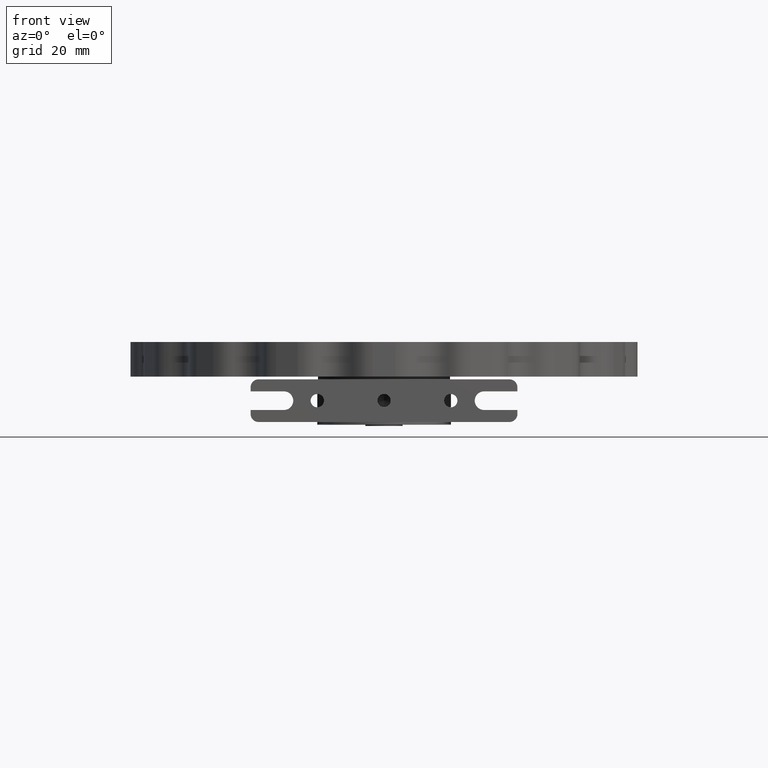
[diagram: clean part render]
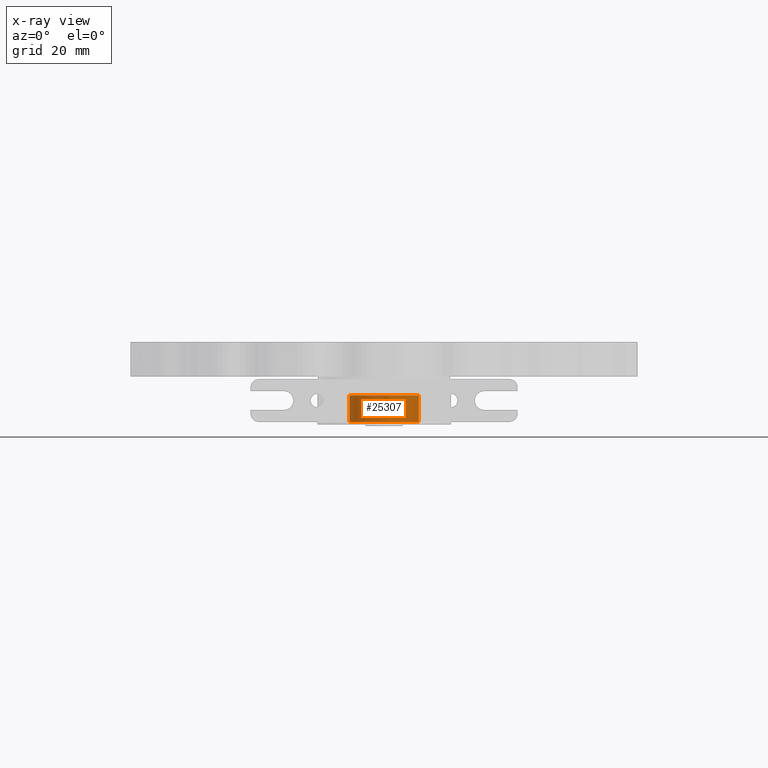
[diagram: x-ray — body ghosted, one internal face saturated and labeled with its STEP entity id]
A machine part, front view, then the same camera in x-ray: the body is ghosted and one INTERNAL B-rep face — a face not visible from any outside direction — is saturated and labeled: STEP entity #25307.
In plain terms, the highlighted cylindrical surface (edge-blend (fillet) strip) has radius 13 mm, axis along (-0, -0, -1).
Its self-contained STEP definition (entity closure, byte-faithful):
#2287 = EDGE_CURVE ( 'NONE', #43781, #21753, #27997, .T. ) ;
#2918 = AXIS2_PLACEMENT_3D ( 'NONE', #4571, #28815, #44686 ) ;
#3811 = VECTOR ( 'NONE', #17351, 1000.000000000000000 ) ;
#4571 = CARTESIAN_POINT ( 'NONE',  ( 0.0000000000000000000, 0.0000000000000000000, -16.00000000000000000 ) ) ;
#6626 = ORIENTED_EDGE ( 'NONE', *, *, #37275, .F. ) ;
#6641 = ORIENTED_EDGE ( 'NONE', *, *, #2287, .T. ) ;
#6770 = ORIENTED_EDGE ( 'NONE', *, *, #13925, .F. ) ;
#7821 = VERTEX_POINT ( 'NONE', #26048 ) ;
#10129 = CARTESIAN_POINT ( 'NONE',  ( -13.00000000000000200, 0.0000000000000000000, -6.000000000000000000 ) ) ;
#10174 = DIRECTION ( 'NONE',  ( -0.0000000000000000000, -0.0000000000000000000, -1.000000000000000000 ) ) ;
#10600 = DIRECTION ( 'NONE',  ( -1.000000000000000000, 0.0000000000000000000, 0.0000000000000000000 ) ) ;
#13609 = AXIS2_PLACEMENT_3D ( 'NONE', #26841, #24023, #10600 ) ;
#13925 = EDGE_CURVE ( 'NONE', #7821, #43995, #39193, .T. ) ;
#14615 = LINE ( 'NONE', #17704, #3811 ) ;
#15511 = CARTESIAN_POINT ( 'NONE',  ( 13.00000000000000200, 1.592040838891559300E-015, -16.00000000000000000 ) ) ;
#17351 = DIRECTION ( 'NONE',  ( -0.0000000000000000000, -0.0000000000000000000, -1.000000000000000000 ) ) ;
#17704 = CARTESIAN_POINT ( 'NONE',  ( 13.00000000000000200, 1.592040838891559300E-015, -6.000000000000000000 ) ) ;
#19332 = CARTESIAN_POINT ( 'NONE',  ( 0.0000000000000000000, 0.0000000000000000000, -6.000000000000000000 ) ) ;
#20624 = LINE ( 'NONE', #46061, #34515 ) ;
#21753 = VERTEX_POINT ( 'NONE', #49902 ) ;
#23195 = DIRECTION ( 'NONE',  ( -0.0000000000000000000, -0.0000000000000000000, -1.000000000000000000 ) ) ;
#24023 = DIRECTION ( 'NONE',  ( 0.0000000000000000000, 0.0000000000000000000, -1.000000000000000000 ) ) ;
#25307 = ADVANCED_FACE ( 'NONE', ( #40444 ), #49358, .F. ) ;
#26048 = CARTESIAN_POINT ( 'NONE',  ( 13.00000000000000200, 1.592040838891559300E-015, -6.000000000000000000 ) ) ;
#26841 = CARTESIAN_POINT ( 'NONE',  ( 0.0000000000000000000, 0.0000000000000000000, -6.000000000000000000 ) ) ;
#27083 = DIRECTION ( 'NONE',  ( -1.000000000000000000, 0.0000000000000000000, 0.0000000000000000000 ) ) ;
#27997 = CIRCLE ( 'NONE', #2918, 13.00000000000000200 ) ;
#28815 = DIRECTION ( 'NONE',  ( 0.0000000000000000000, 0.0000000000000000000, -1.000000000000000000 ) ) ;
#31766 = EDGE_CURVE ( 'NONE', #7821, #43781, #14615, .T. ) ;
#34515 = VECTOR ( 'NONE', #10174, 1000.000000000000000 ) ;
#36292 = AXIS2_PLACEMENT_3D ( 'NONE', #19332, #23195, #27083 ) ;
#37275 = EDGE_CURVE ( 'NONE', #43995, #21753, #20624, .T. ) ;
#39193 = CIRCLE ( 'NONE', #13609, 13.00000000000000200 ) ;
#39496 = EDGE_LOOP ( 'NONE', ( #6770, #47636, #6641, #6626 ) ) ;
#40444 = FACE_OUTER_BOUND ( 'NONE', #39496, .T. ) ;
#43781 = VERTEX_POINT ( 'NONE', #15511 ) ;
#43995 = VERTEX_POINT ( 'NONE', #10129 ) ;
#44686 = DIRECTION ( 'NONE',  ( -1.000000000000000000, 0.0000000000000000000, 0.0000000000000000000 ) ) ;
#46061 = CARTESIAN_POINT ( 'NONE',  ( -13.00000000000000200, 0.0000000000000000000, -6.000000000000000000 ) ) ;
#47636 = ORIENTED_EDGE ( 'NONE', *, *, #31766, .T. ) ;
#49358 = CYLINDRICAL_SURFACE ( 'NONE', #36292, 13.00000000000000200 ) ;
#49902 = CARTESIAN_POINT ( 'NONE',  ( -13.00000000000000200, 0.0000000000000000000, -16.00000000000000000 ) ) ;